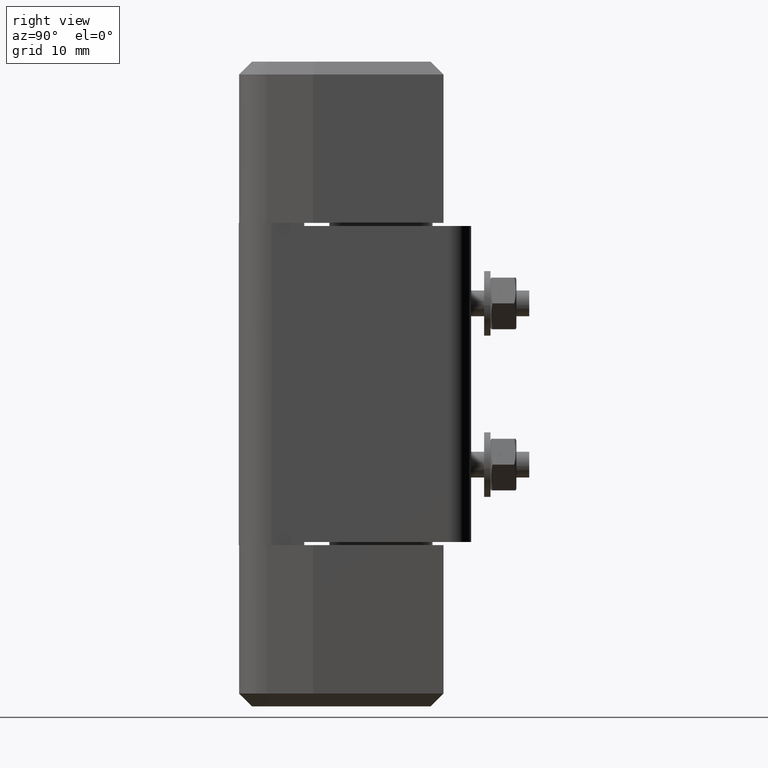
[diagram: clean part render]
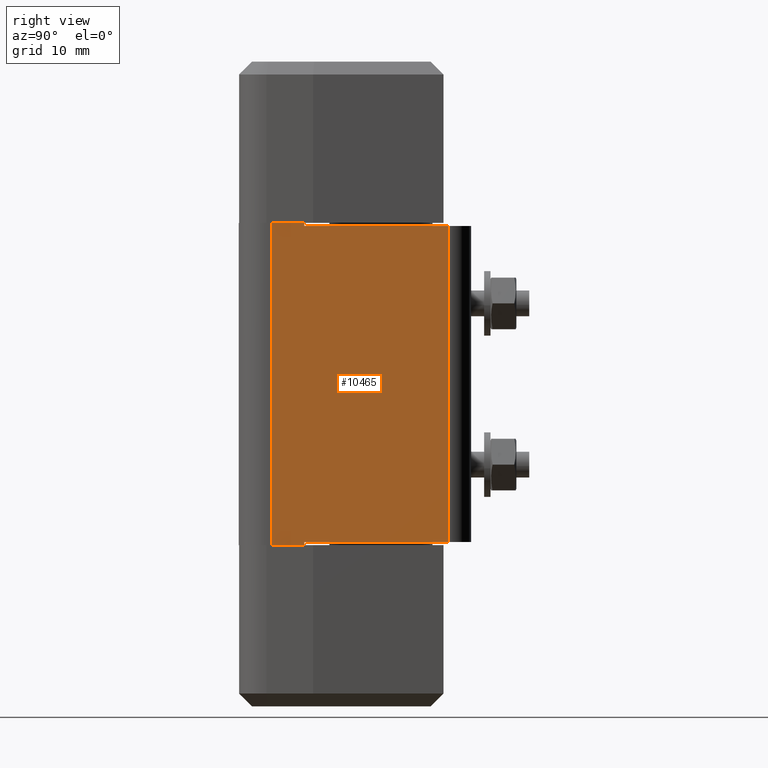
[diagram: same view with one face highlighted and labeled with its STEP entity id]
A machine part, right view. The second image highlights one B-rep face of the part: STEP entity #10465.
In plain terms, the highlighted face is a freeform B-spline surface patch.
Its self-contained STEP definition (entity closure, byte-faithful):
#10008=CARTESIAN_POINT('',(5.050000228034290,27.500001182998201,25.500001211185001));
#10009=VERTEX_POINT('',#10008);
#10023=CARTESIAN_POINT('',(5.050000228034290,5.100001349244260,25.500001211185001));
#10024=VERTEX_POINT('',#10023);
#10025=CARTESIAN_POINT('',(5.050000228034290,5.100001349244260,25.500001211185001));
#10026=CARTESIAN_POINT('',(5.050000228034290,27.500001182998201,25.500001211185001));
#10027=QUASI_UNIFORM_CURVE('',1,(#10025,#10026),.UNSPECIFIED.,.F.,.U.);
#10028=EDGE_CURVE('',#10024,#10009,#10027,.T.);
#10096=CARTESIAN_POINT('',(5.050000228034290,5.100001349244260,74.500003538560193));
#10097=VERTEX_POINT('',#10096);
#10103=CARTESIAN_POINT('',(5.050000228034290,27.500001182998201,74.500003538560193));
#10104=VERTEX_POINT('',#10103);
#10105=CARTESIAN_POINT('',(5.050000228034290,5.100001349244260,74.500003538560193));
#10106=CARTESIAN_POINT('',(5.050000228034290,27.500001182998201,74.500003538560193));
#10107=QUASI_UNIFORM_CURVE('',1,(#10105,#10106),.UNSPECIFIED.,.F.,.U.);
#10108=EDGE_CURVE('',#10097,#10104,#10107,.T.);
#10205=CARTESIAN_POINT('',(5.050000228034290,27.500001182998201,74.500003538560193));
#10206=CARTESIAN_POINT('',(5.050000228034290,27.500001182998201,25.500001211185001));
#10207=QUASI_UNIFORM_CURVE('',1,(#10205,#10206),.UNSPECIFIED.,.F.,.U.);
#10208=EDGE_CURVE('',#10104,#10009,#10207,.T.);
#10277=CARTESIAN_POINT('',(5.050000228034290,5.100001349244260,25.000001187434950));
#10278=VERTEX_POINT('',#10277);
#10284=CARTESIAN_POINT('',(5.049999999999920,0.0,25.000001187434950));
#10285=VERTEX_POINT('',#10284);
#10286=CARTESIAN_POINT('',(5.049999999999920,0.0,25.000001187434950));
#10287=CARTESIAN_POINT('',(5.050000228034290,5.100001349244260,25.000001187434950));
#10288=QUASI_UNIFORM_CURVE('',1,(#10286,#10287),.UNSPECIFIED.,.F.,.U.);
#10289=EDGE_CURVE('',#10285,#10278,#10288,.T.);
#10355=CARTESIAN_POINT('',(5.049999999999920,0.0,75.000003562310297));
#10356=VERTEX_POINT('',#10355);
#10376=CARTESIAN_POINT('',(5.050000228034290,5.100001349244260,75.000003562310297));
#10377=VERTEX_POINT('',#10376);
#10378=CARTESIAN_POINT('',(5.049999999999920,0.0,75.000003562310297));
#10379=CARTESIAN_POINT('',(5.050000228034290,5.100001349244260,75.000003562310297));
#10380=QUASI_UNIFORM_CURVE('',1,(#10378,#10379),.UNSPECIFIED.,.F.,.U.);
#10381=EDGE_CURVE('',#10356,#10377,#10380,.T.);
#10433=CARTESIAN_POINT('',(5.050000228034290,5.100001349244260,25.500001211185001));
#10434=CARTESIAN_POINT('',(5.050000228034290,5.100001349244260,25.000001187434950));
#10435=QUASI_UNIFORM_CURVE('',1,(#10433,#10434),.UNSPECIFIED.,.F.,.U.);
#10436=EDGE_CURVE('',#10024,#10278,#10435,.T.);
#10442=CARTESIAN_POINT('',(5.050000228034290,-1.373625005790420,22.502501813719011));
#10443=CARTESIAN_POINT('',(5.050000228034290,-1.373625005790420,77.497501147886823));
#10444=CARTESIAN_POINT('',(5.050000228034290,28.873626926396138,22.502501813719011));
#10445=CARTESIAN_POINT('',(5.050000228034290,28.873626926396138,77.497501147886823));
#10446=B_SPLINE_SURFACE_WITH_KNOTS('',1,1,((#10442,#10444),(#10443,#10445)),.UNSPECIFIED.,.F.,.F.,.U.,(2,2),(2,2),(0.0,54.994999334167822),(0.0,30.247251932186561),.UNSPECIFIED.);
#10447=ORIENTED_EDGE('',*,*,#10289,.T.);
#10448=ORIENTED_EDGE('',*,*,#10436,.F.);
#10449=ORIENTED_EDGE('',*,*,#10028,.T.);
#10450=ORIENTED_EDGE('',*,*,#10208,.F.);
#10451=ORIENTED_EDGE('',*,*,#10108,.F.);
#10452=CARTESIAN_POINT('',(5.050000228034290,5.100001349244260,75.000003562310297));
#10453=CARTESIAN_POINT('',(5.050000228034290,5.100001349244260,74.500003538560193));
#10454=QUASI_UNIFORM_CURVE('',1,(#10452,#10453),.UNSPECIFIED.,.F.,.U.);
#10455=EDGE_CURVE('',#10377,#10097,#10454,.T.);
#10456=ORIENTED_EDGE('',*,*,#10455,.F.);
#10457=ORIENTED_EDGE('',*,*,#10381,.F.);
#10458=CARTESIAN_POINT('',(5.049999999999920,0.0,75.000003562310297));
#10459=CARTESIAN_POINT('',(5.049999999999920,0.0,25.000001187434950));
#10460=QUASI_UNIFORM_CURVE('',1,(#10458,#10459),.UNSPECIFIED.,.F.,.U.);
#10461=EDGE_CURVE('',#10356,#10285,#10460,.T.);
#10462=ORIENTED_EDGE('',*,*,#10461,.T.);
#10463=EDGE_LOOP('',(#10447,#10448,#10449,#10450,#10451,#10456,#10457,#10462));
#10464=FACE_OUTER_BOUND('',#10463,.T.);
#10465=ADVANCED_FACE('',(#10464),#10446,.F.);